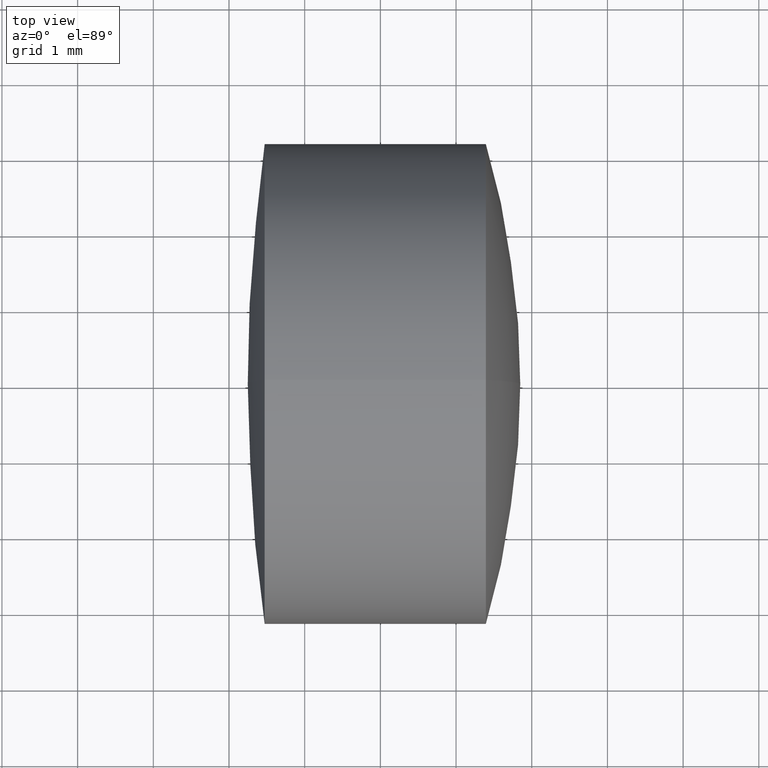
[diagram: clean part render]
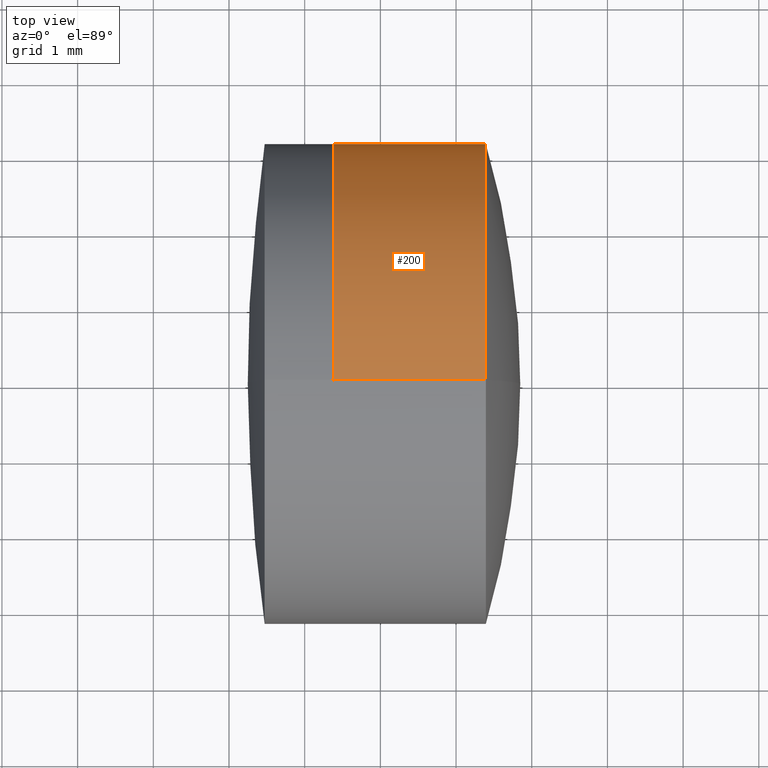
[diagram: same view with one face highlighted and labeled with its STEP entity id]
A machine part, top view. The second image highlights one B-rep face of the part: STEP entity #200.
In plain terms, the highlighted cylindrical surface (partial cylindrical patch) has radius 3.175 mm, axis along (-1, -0, -0).
Its self-contained STEP definition (entity closure, byte-faithful):
#7 = EDGE_CURVE ( 'NONE', #101, #115, #194, .T. ) ;
#34 = LINE ( 'NONE', #207, #284 ) ;
#41 = ORIENTED_EDGE ( 'NONE', *, *, #141, .F. ) ;
#48 = EDGE_CURVE ( 'NONE', #115, #212, #34, .T. ) ;
#70 = CARTESIAN_POINT ( 'NONE',  ( -0.5519199926577972300, 0.0000000000000000000, 3.174999999999998000 ) ) ;
#89 = DIRECTION ( 'NONE',  ( -1.000000000000000000, -0.0000000000000000000, -0.0000000000000000000 ) ) ;
#96 = AXIS2_PLACEMENT_3D ( 'NONE', #114, #345, #199 ) ;
#101 = VERTEX_POINT ( 'NONE', #270 ) ;
#114 = CARTESIAN_POINT ( 'NONE',  ( -0.5519199926577972300, 0.0000000000000000000, 0.0000000000000000000 ) ) ;
#115 = VERTEX_POINT ( 'NONE', #189 ) ;
#119 = CIRCLE ( 'NONE', #247, 3.174999999999998500 ) ;
#123 = VERTEX_POINT ( 'NONE', #303 ) ;
#137 = CYLINDRICAL_SURFACE ( 'NONE', #96, 3.174999999999998000 ) ;
#141 = EDGE_CURVE ( 'NONE', #123, #212, #119, .T. ) ;
#148 = DIRECTION ( 'NONE',  ( -1.000000000000000000, -0.0000000000000000000, -0.0000000000000000000 ) ) ;
#155 = CARTESIAN_POINT ( 'NONE',  ( 2.377028588039098900, 0.0000000000000000000, -3.174999999999998500 ) ) ;
#162 = DIRECTION ( 'NONE',  ( 0.0000000000000000000, 0.0000000000000000000, 1.000000000000000000 ) ) ;
#166 = FACE_OUTER_BOUND ( 'NONE', #196, .T. ) ;
#171 = AXIS2_PLACEMENT_3D ( 'NONE', #176, #89, #327 ) ;
#176 = CARTESIAN_POINT ( 'NONE',  ( 4.393583028086461600, 0.0000000000000000000, 0.0000000000000000000 ) ) ;
#189 = CARTESIAN_POINT ( 'NONE',  ( 4.393583028086461600, 0.0000000000000000000, -3.175000000000001600 ) ) ;
#194 = CIRCLE ( 'NONE', #171, 3.174999999999998000 ) ;
#196 = EDGE_LOOP ( 'NONE', ( #244, #204, #41, #250 ) ) ;
#199 = DIRECTION ( 'NONE',  ( 0.0000000000000000000, 0.0000000000000000000, 1.000000000000000000 ) ) ;
#200 = ADVANCED_FACE ( 'NONE', ( #166 ), #137, .T. ) ;
#204 = ORIENTED_EDGE ( 'NONE', *, *, #48, .T. ) ;
#207 = CARTESIAN_POINT ( 'NONE',  ( -0.5519199926577972300, 3.888253587292844600E-016, -3.174999999999998000 ) ) ;
#212 = VERTEX_POINT ( 'NONE', #155 ) ;
#224 = LINE ( 'NONE', #70, #347 ) ;
#234 = EDGE_CURVE ( 'NONE', #101, #123, #224, .T. ) ;
#244 = ORIENTED_EDGE ( 'NONE', *, *, #7, .T. ) ;
#247 = AXIS2_PLACEMENT_3D ( 'NONE', #263, #251, #162 ) ;
#250 = ORIENTED_EDGE ( 'NONE', *, *, #234, .F. ) ;
#251 = DIRECTION ( 'NONE',  ( -1.000000000000000000, -0.0000000000000000000, -0.0000000000000000000 ) ) ;
#263 = CARTESIAN_POINT ( 'NONE',  ( 2.377028588039098900, 0.0000000000000000000, 0.0000000000000000000 ) ) ;
#270 = CARTESIAN_POINT ( 'NONE',  ( 4.393583028086461600, -3.888253587292848500E-016, 3.175000000000001600 ) ) ;
#284 = VECTOR ( 'NONE', #148, 1000.000000000000000 ) ;
#303 = CARTESIAN_POINT ( 'NONE',  ( 2.377028588039098900, -3.888253587292845100E-016, 3.174999999999998500 ) ) ;
#327 = DIRECTION ( 'NONE',  ( 0.0000000000000000000, 0.0000000000000000000, 1.000000000000000000 ) ) ;
#332 = DIRECTION ( 'NONE',  ( -1.000000000000000000, -0.0000000000000000000, -0.0000000000000000000 ) ) ;
#345 = DIRECTION ( 'NONE',  ( -1.000000000000000000, -0.0000000000000000000, -0.0000000000000000000 ) ) ;
#347 = VECTOR ( 'NONE', #332, 1000.000000000000000 ) ;